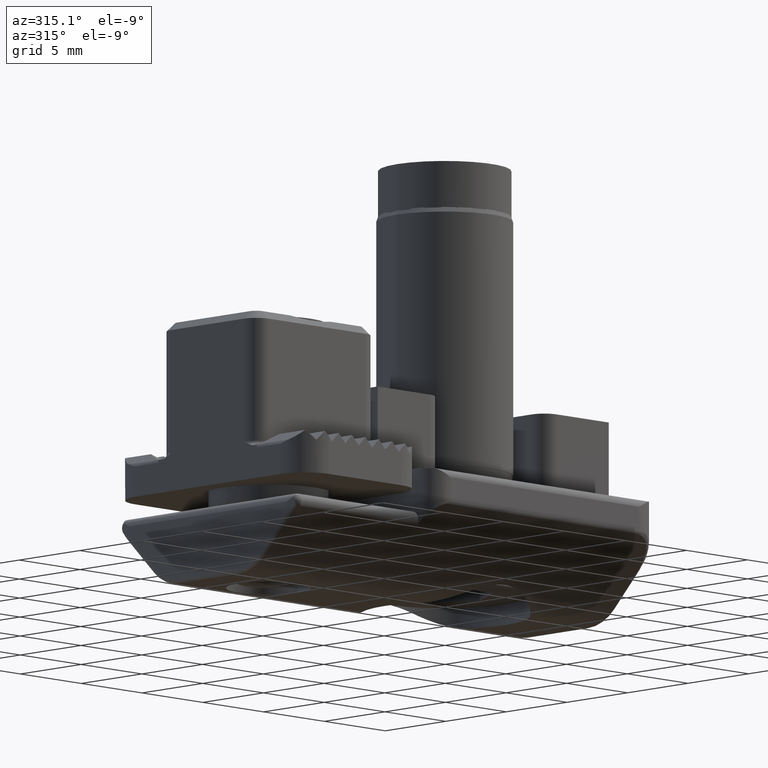
[diagram: clean part render]
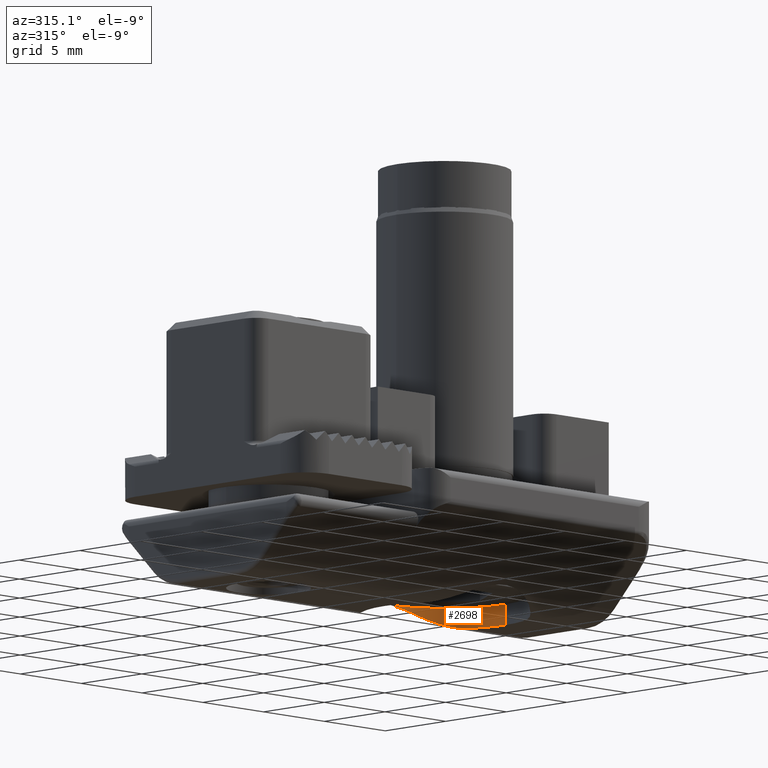
[diagram: same view with one face highlighted and labeled with its STEP entity id]
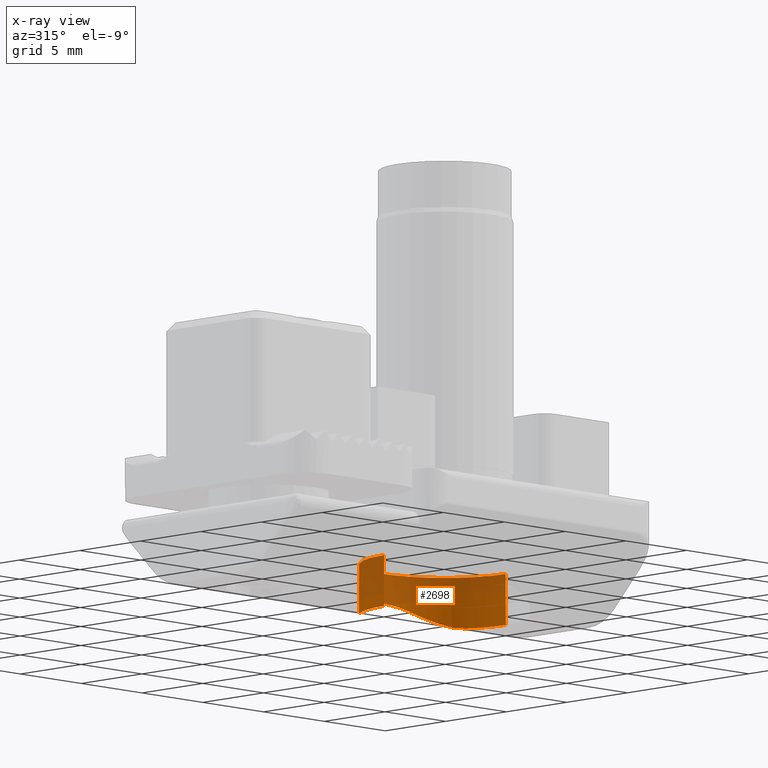
[diagram: x-ray of the same camera — body ghosted, the highlighted face saturated]
A machine part, auxiliary view. The second image highlights one B-rep face of the part: STEP entity #2698.
The next image is the same camera in x-ray: the body ghosted, the highlighted face saturated — about 54% of this face is hidden behind the body in this view.
In plain terms, the highlighted cylindrical surface (partial cylindrical patch) has radius 5 mm, axis along (0, 0, -1).
Its self-contained STEP definition (entity closure, byte-faithful):
#108=CARTESIAN_POINT('',(-1.890852886413E0,4.628679656440E0,-1.112132034356E1));
#109=CARTESIAN_POINT('',(-1.260568558480E0,4.886155876268E0,-1.086384412373E1));
#110=CARTESIAN_POINT('',(8.919869687318E-8,5.113844145544E0,-1.063615585446E1));
#111=CARTESIAN_POINT('',(1.260568723903E0,4.886155832644E0,-1.086384416736E1));
#112=CARTESIAN_POINT('',(1.890853037162E0,4.628679594858E0,-1.112132040514E1));
#576=CARTESIAN_POINT('',(0.E0,0.E0,-1.2E1));
#577=DIRECTION('',(0.E0,0.E0,-1.E0));
#578=DIRECTION('',(-1.E0,0.E0,0.E0));
#579=AXIS2_PLACEMENT_3D('',#576,#577,#578);
#591=CARTESIAN_POINT('',(0.E0,0.E0,-1.2E1));
#592=DIRECTION('',(0.E0,0.E0,-1.E0));
#593=DIRECTION('',(8.651739542106E-1,5.014718625761E-1,0.E0));
#594=AXIS2_PLACEMENT_3D('',#591,#592,#593);
#1162=CARTESIAN_POINT('',(-1.890852886413E0,4.628679656440E0,
-1.112132034356E1));
#1163=CARTESIAN_POINT('',(-2.028574342249E0,4.572419333493E0,
-1.117758066651E1));
#1164=CARTESIAN_POINT('',(-2.298279733314E0,4.448020963863E0,
-1.129306315829E1));
#1165=CARTESIAN_POINT('',(-2.689981240546E0,4.222860109059E0,
-1.146706989455E1));
#1166=CARTESIAN_POINT('',(-3.062002241003E0,3.961505544355E0,
-1.163047347154E1));
#1167=CARTESIAN_POINT('',(-3.410512271399E0,3.665743408691E0,
-1.177414931108E1));
#1168=CARTESIAN_POINT('',(-3.730541928568E0,3.339750798183E0,
-1.188956475737E1));
#1169=CARTESIAN_POINT('',(-4.034010367195E0,2.968531335399E0,
-1.197383882165E1));
#1170=CARTESIAN_POINT('',(-4.232129591061E0,2.669086357296E0,-1.2E1));
#1171=CARTESIAN_POINT('',(-4.325869771053E0,2.507359312881E0,-1.2E1));
#1184=CARTESIAN_POINT('',(4.325869771053E0,2.507359312881E0,-1.2E1));
#1185=CARTESIAN_POINT('',(4.232202873202E0,2.668959925877E0,-1.2E1));
#1186=CARTESIAN_POINT('',(4.034176338621E0,2.968330584896E0,-1.197388708560E1));
#1187=CARTESIAN_POINT('',(3.730188379511E0,3.340182837740E0,-1.188946536386E1));
#1188=CARTESIAN_POINT('',(3.409794514755E0,3.666415147486E0,-1.177386957314E1));
#1189=CARTESIAN_POINT('',(3.061310202004E0,3.962029751345E0,-1.163017412004E1));
#1190=CARTESIAN_POINT('',(2.689554168924E0,4.223116033728E0,-1.146687920703E1));
#1191=CARTESIAN_POINT('',(2.298205018350E0,4.448049830276E0,-1.129303178401E1));
#1192=CARTESIAN_POINT('',(2.028568210724E0,4.572421835378E0,-1.117757816135E1));
#1193=CARTESIAN_POINT('',(1.890853026090E0,4.628679600658E0,-1.112132039921E1));
#1221=DIRECTION('',(0.E0,0.E0,-1.E0));
#1222=VECTOR('',#1221,3.E0);
#1223=CARTESIAN_POINT('',(-5.E0,0.E0,-9.E0));
#1224=LINE('',#1223,#1222);
#1228=CARTESIAN_POINT('',(0.E0,0.E0,-9.E0));
#1229=DIRECTION('',(0.E0,0.E0,1.E0));
#1230=DIRECTION('',(1.E0,0.E0,0.E0));
#1231=AXIS2_PLACEMENT_3D('',#1228,#1229,#1230);
#1236=DIRECTION('',(0.E0,0.E0,-1.E0));
#1237=VECTOR('',#1236,3.E0);
#1238=CARTESIAN_POINT('',(5.E0,0.E0,-9.E0));
#1239=LINE('',#1238,#1237);
#1491=CARTESIAN_POINT('',(5.E0,0.E0,-9.E0));
#1493=VERTEX_POINT('',#1491);
#1495=CARTESIAN_POINT('',(-5.E0,0.E0,-9.E0));
#1497=VERTEX_POINT('',#1495);
#1506=CARTESIAN_POINT('',(5.E0,0.E0,-1.2E1));
#1507=VERTEX_POINT('',#1506);
#1508=CARTESIAN_POINT('',(-5.E0,0.E0,-1.2E1));
#1509=VERTEX_POINT('',#1508);
#1510=CARTESIAN_POINT('',(-4.325869771053E0,2.507359312881E0,-1.2E1));
#1511=VERTEX_POINT('',#1510);
#1512=CARTESIAN_POINT('',(4.325869771053E0,2.507359312881E0,-1.2E1));
#1513=VERTEX_POINT('',#1512);
#1514=VERTEX_POINT('',#1193);
#1515=VERTEX_POINT('',#1162);
#2683=CARTESIAN_POINT('',(0.E0,0.E0,-4.86E0));
#2684=DIRECTION('',(0.E0,0.E0,-1.E0));
#2685=DIRECTION('',(1.E0,0.E0,0.E0));
#2686=AXIS2_PLACEMENT_3D('',#2683,#2684,#2685);
#2687=CYLINDRICAL_SURFACE('',#2686,5.E0);
#2688=ORIENTED_EDGE('',*,*,#2113,.F.);
#2689=ORIENTED_EDGE('',*,*,#1892,.F.);
#2690=ORIENTED_EDGE('',*,*,#1857,.F.);
#2691=ORIENTED_EDGE('',*,*,#1889,.T.);
#2692=ORIENTED_EDGE('',*,*,#2135,.F.);
#2693=ORIENTED_EDGE('',*,*,#2652,.T.);
#2694=ORIENTED_EDGE('',*,*,#1721,.F.);
#2695=ORIENTED_EDGE('',*,*,#2639,.T.);
#2696=EDGE_LOOP('',(#2688,#2689,#2690,#2691,#2692,#2693,#2694,#2695));
#2697=FACE_OUTER_BOUND('',#2696,.F.);
#2698=ADVANCED_FACE('',(#2697),#2687,.F.);
#113=B_SPLINE_CURVE_WITH_KNOTS('',3,(#108,#109,#110,#111,#112),.UNSPECIFIED.,
.F.,.F.,(4,1,4),(0.E0,5.E-1,1.E0),.UNSPECIFIED.);
#580=CIRCLE('',#579,5.E0);
#595=CIRCLE('',#594,5.E0);
#1172=B_SPLINE_CURVE_WITH_KNOTS('',3,(#1162,#1163,#1164,#1165,#1166,#1167,#1168,
#1169,#1170,#1171),.UNSPECIFIED.,.F.,.F.,(4,1,1,1,1,1,1,4),(0.E0,
1.428571428571E-1,2.857142857143E-1,4.285714285714E-1,5.714285714286E-1,
7.142857142857E-1,8.571428571429E-1,1.E0),.UNSPECIFIED.);
#1194=B_SPLINE_CURVE_WITH_KNOTS('',3,(#1184,#1185,#1186,#1187,#1188,#1189,#1190,
#1191,#1192,#1193),.UNSPECIFIED.,.F.,.F.,(4,1,1,1,1,1,1,4),(0.E0,
1.428571428571E-1,2.857142857143E-1,4.285714285714E-1,5.714285714286E-1,
7.142857142857E-1,8.571428571429E-1,1.E0),.UNSPECIFIED.);
#1232=CIRCLE('',#1231,5.E0);
#1721=EDGE_CURVE('',#1515,#1514,#113,.T.);
#1857=EDGE_CURVE('',#1493,#1497,#1232,.T.);
#1889=EDGE_CURVE('',#1493,#1507,#1239,.T.);
#1892=EDGE_CURVE('',#1497,#1509,#1224,.T.);
#2113=EDGE_CURVE('',#1509,#1511,#580,.T.);
#2135=EDGE_CURVE('',#1513,#1507,#595,.T.);
#2639=EDGE_CURVE('',#1515,#1511,#1172,.T.);
#2652=EDGE_CURVE('',#1513,#1514,#1194,.T.);